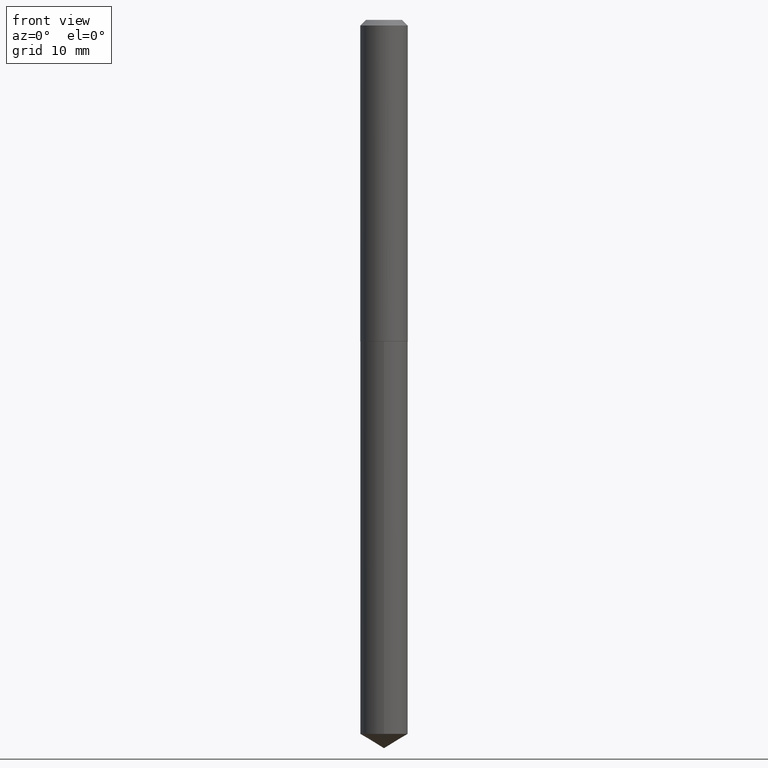
[diagram: clean part render]
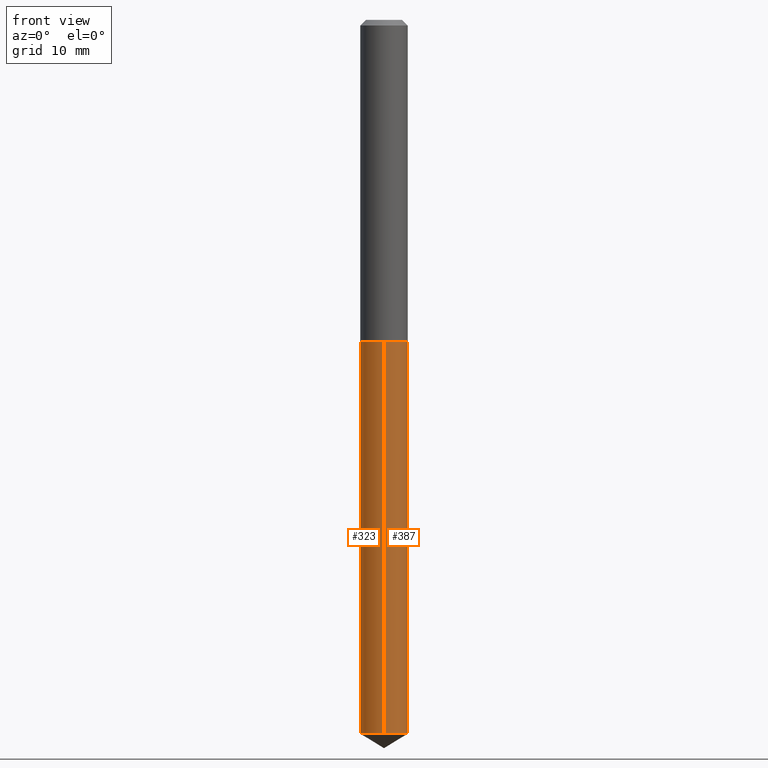
[diagram: same view with one multi-face feature highlighted, each face labeled with its STEP entity id]
A machine part, front view. The highlighted faces form ONE feature: a constant-radius fillet chain: 2 tangent blend faces with common blend radius 3.2995 mm. The faces share edges in the B-rep.
Their STEP definitions:
[1] entity #323 (Cylinder):
#4 = VECTOR ( 'NONE', #153, 39.37007874015748143 ) ;
#8 = DIRECTION ( 'NONE',  ( -2.445533253991157994E-29, 3.491389045916781697E-15, 1.000000000000000000 ) ) ;
#13 = DIRECTION ( 'NONE',  ( -6.982962677686266711E-15, -1.000000000000000000, 4.206078512185163024E-15 ) ) ;
#23 = DIRECTION ( 'NONE',  ( -6.982962677686266711E-15, -1.000000000000000000, 4.206078512185163024E-15 ) ) ;
#35 = CARTESIAN_POINT ( 'NONE',  ( 9.229950137524659006E-16, 0.1298999999999938815, -1.755900000000000016 ) ) ;
#38 = FACE_OUTER_BOUND ( 'NONE', #45, .T. ) ;
#45 = EDGE_LOOP ( 'NONE', ( #260, #140, #255, #157 ) ) ;
#64 = EDGE_CURVE ( 'NONE', #115, #72, #152, .T. ) ;
#72 = VERTEX_POINT ( 'NONE', #108 ) ;
#91 = CARTESIAN_POINT ( 'NONE',  ( 9.229950137524655062E-16, 0.1298999999999864152, -3.898348205588320070 ) ) ;
#96 = CARTESIAN_POINT ( 'NONE',  ( 4.293998676780479954E-29, -6.130692082874677624E-15, -1.755899999999999350 ) ) ;
#108 = CARTESIAN_POINT ( 'NONE',  ( -9.070868518314029991E-16, -0.1299000000000061217, -1.755899999999998906 ) ) ;
#109 = AXIS2_PLACEMENT_3D ( 'NONE', #167, #292, #23 ) ;
#115 = VERTEX_POINT ( 'NONE', #35 ) ;
#136 = VERTEX_POINT ( 'NONE', #91 ) ;
#140 = ORIENTED_EDGE ( 'NONE', *, *, #289, .T. ) ;
#152 = CIRCLE ( 'NONE', #109, 0.1298999999999999877 ) ;
#153 = DIRECTION ( 'NONE',  ( -2.445533253991157994E-29, 3.491389045916781697E-15, 1.000000000000000000 ) ) ;
#155 = EDGE_CURVE ( 'NONE', #136, #115, #276, .T. ) ;
#157 = ORIENTED_EDGE ( 'NONE', *, *, #64, .F. ) ;
#158 = VECTOR ( 'NONE', #8, 39.37007874015748143 ) ;
#167 = CARTESIAN_POINT ( 'NONE',  ( 4.293998676780479954E-29, -6.130692082874677624E-15, -1.755899999999999350 ) ) ;
#189 = DIRECTION ( 'NONE',  ( -2.445533253991157994E-29, 3.491389045916781697E-15, 1.000000000000000000 ) ) ;
#191 = EDGE_CURVE ( 'NONE', #203, #72, #278, .T. ) ;
#203 = VERTEX_POINT ( 'NONE', #372 ) ;
#213 = CARTESIAN_POINT ( 'NONE',  ( 9.229950137524128497E-16, 0.1298999999999938537, -1.755900000000000016 ) ) ;
#217 = DIRECTION ( 'NONE',  ( -2.445533253991157994E-29, 3.491389045916781697E-15, 1.000000000000000000 ) ) ;
#239 = AXIS2_PLACEMENT_3D ( 'NONE', #313, #217, #13 ) ;
#255 = ORIENTED_EDGE ( 'NONE', *, *, #191, .T. ) ;
#260 = ORIENTED_EDGE ( 'NONE', *, *, #155, .F. ) ;
#268 = CIRCLE ( 'NONE', #239, 0.1298999999999999877 ) ;
#276 = LINE ( 'NONE', #213, #4 ) ;
#278 = LINE ( 'NONE', #367, #158 ) ;
#288 = CYLINDRICAL_SURFACE ( 'NONE', #296, 0.1298999999999999877 ) ;
#289 = EDGE_CURVE ( 'NONE', #136, #203, #268, .T. ) ;
#292 = DIRECTION ( 'NONE',  ( -2.445533253991157994E-29, 3.491389045916781697E-15, 1.000000000000000000 ) ) ;
#296 = AXIS2_PLACEMENT_3D ( 'NONE', #96, #189, #345 ) ;
#313 = CARTESIAN_POINT ( 'NONE',  ( 9.533427008500400786E-29, -1.361081227930980387E-14, -3.898348205588319626 ) ) ;
#323 = ADVANCED_FACE ( 'NONE', ( #38 ), #288, .T. ) ;
#345 = DIRECTION ( 'NONE',  ( -6.982962677686266711E-15, -1.000000000000000000, 4.206078512185163024E-15 ) ) ;
#367 = CARTESIAN_POINT ( 'NONE',  ( -9.070868518314029991E-16, -0.1299000000000061217, -1.755899999999998906 ) ) ;
#372 = CARTESIAN_POINT ( 'NONE',  ( -9.070868518313507371E-16, -0.1299000000000136434, -3.898348205588319182 ) ) ;
[2] entity #387 (Cylinder):
#4 = VECTOR ( 'NONE', #153, 39.37007874015748143 ) ;
#8 = DIRECTION ( 'NONE',  ( -2.445533253991157994E-29, 3.491389045916781697E-15, 1.000000000000000000 ) ) ;
#35 = CARTESIAN_POINT ( 'NONE',  ( 9.229950137524659006E-16, 0.1298999999999938815, -1.755900000000000016 ) ) ;
#61 = AXIS2_PLACEMENT_3D ( 'NONE', #297, #112, #234 ) ;
#72 = VERTEX_POINT ( 'NONE', #108 ) ;
#76 = EDGE_CURVE ( 'NONE', #72, #115, #138, .T. ) ;
#91 = CARTESIAN_POINT ( 'NONE',  ( 9.229950137524655062E-16, 0.1298999999999864152, -3.898348205588320070 ) ) ;
#92 = CIRCLE ( 'NONE', #139, 0.1298999999999999877 ) ;
#93 = DIRECTION ( 'NONE',  ( -2.445533253991157994E-29, 3.491389045916781697E-15, 1.000000000000000000 ) ) ;
#97 = DIRECTION ( 'NONE',  ( -2.445533253991157994E-29, 3.491389045916781697E-15, 1.000000000000000000 ) ) ;
#102 = FACE_OUTER_BOUND ( 'NONE', #104, .T. ) ;
#104 = EDGE_LOOP ( 'NONE', ( #218, #137, #188, #224 ) ) ;
#108 = CARTESIAN_POINT ( 'NONE',  ( -9.070868518314029991E-16, -0.1299000000000061217, -1.755899999999998906 ) ) ;
#112 = DIRECTION ( 'NONE',  ( -2.445533253991157994E-29, 3.491389045916781697E-15, 1.000000000000000000 ) ) ;
#115 = VERTEX_POINT ( 'NONE', #35 ) ;
#136 = VERTEX_POINT ( 'NONE', #91 ) ;
#137 = ORIENTED_EDGE ( 'NONE', *, *, #155, .T. ) ;
#138 = CIRCLE ( 'NONE', #61, 0.1298999999999999877 ) ;
#139 = AXIS2_PLACEMENT_3D ( 'NONE', #273, #93, #336 ) ;
#153 = DIRECTION ( 'NONE',  ( -2.445533253991157994E-29, 3.491389045916781697E-15, 1.000000000000000000 ) ) ;
#155 = EDGE_CURVE ( 'NONE', #136, #115, #276, .T. ) ;
#158 = VECTOR ( 'NONE', #8, 39.37007874015748143 ) ;
#187 = DIRECTION ( 'NONE',  ( -6.982962677686266711E-15, -1.000000000000000000, 4.206078512185163024E-15 ) ) ;
#188 = ORIENTED_EDGE ( 'NONE', *, *, #76, .F. ) ;
#191 = EDGE_CURVE ( 'NONE', #203, #72, #278, .T. ) ;
#203 = VERTEX_POINT ( 'NONE', #372 ) ;
#213 = CARTESIAN_POINT ( 'NONE',  ( 9.229950137524128497E-16, 0.1298999999999938537, -1.755900000000000016 ) ) ;
#214 = EDGE_CURVE ( 'NONE', #203, #136, #92, .T. ) ;
#218 = ORIENTED_EDGE ( 'NONE', *, *, #214, .T. ) ;
#224 = ORIENTED_EDGE ( 'NONE', *, *, #191, .F. ) ;
#234 = DIRECTION ( 'NONE',  ( -6.982962677686266711E-15, -1.000000000000000000, 4.206078512185163024E-15 ) ) ;
#273 = CARTESIAN_POINT ( 'NONE',  ( 9.533427008500400786E-29, -1.361081227930980387E-14, -3.898348205588319626 ) ) ;
#276 = LINE ( 'NONE', #213, #4 ) ;
#278 = LINE ( 'NONE', #367, #158 ) ;
#286 = CYLINDRICAL_SURFACE ( 'NONE', #376, 0.1298999999999999877 ) ;
#297 = CARTESIAN_POINT ( 'NONE',  ( 4.293998676780479954E-29, -6.130692082874677624E-15, -1.755899999999999350 ) ) ;
#336 = DIRECTION ( 'NONE',  ( -6.982962677686266711E-15, -1.000000000000000000, 4.206078512185163024E-15 ) ) ;
#367 = CARTESIAN_POINT ( 'NONE',  ( -9.070868518314029991E-16, -0.1299000000000061217, -1.755899999999998906 ) ) ;
#372 = CARTESIAN_POINT ( 'NONE',  ( -9.070868518313507371E-16, -0.1299000000000136434, -3.898348205588319182 ) ) ;
#374 = CARTESIAN_POINT ( 'NONE',  ( 4.293998676780479954E-29, -6.130692082874677624E-15, -1.755899999999999350 ) ) ;
#376 = AXIS2_PLACEMENT_3D ( 'NONE', #374, #97, #187 ) ;
#387 = ADVANCED_FACE ( 'NONE', ( #102 ), #286, .T. ) ;